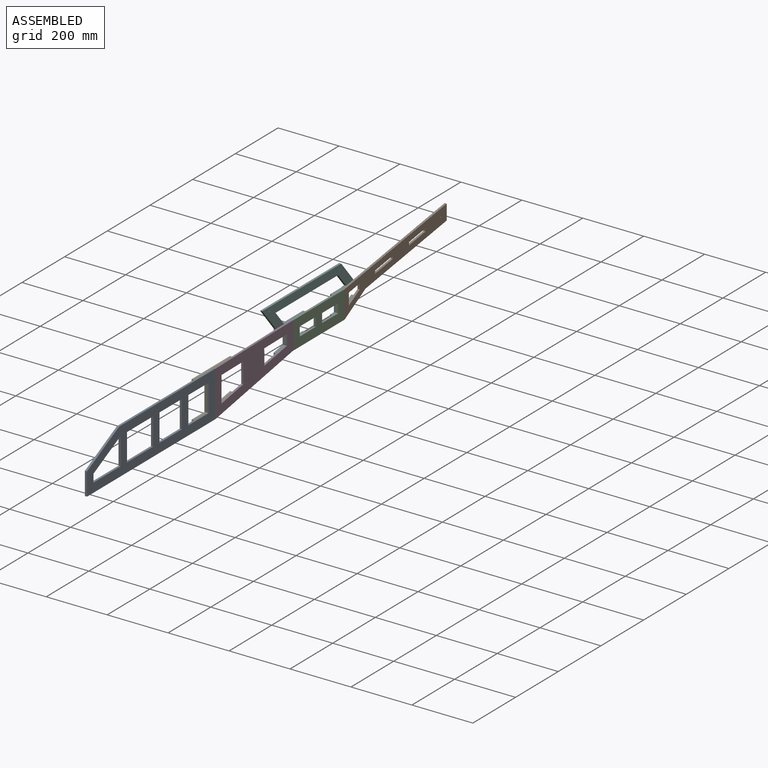
[diagram: assembled view]
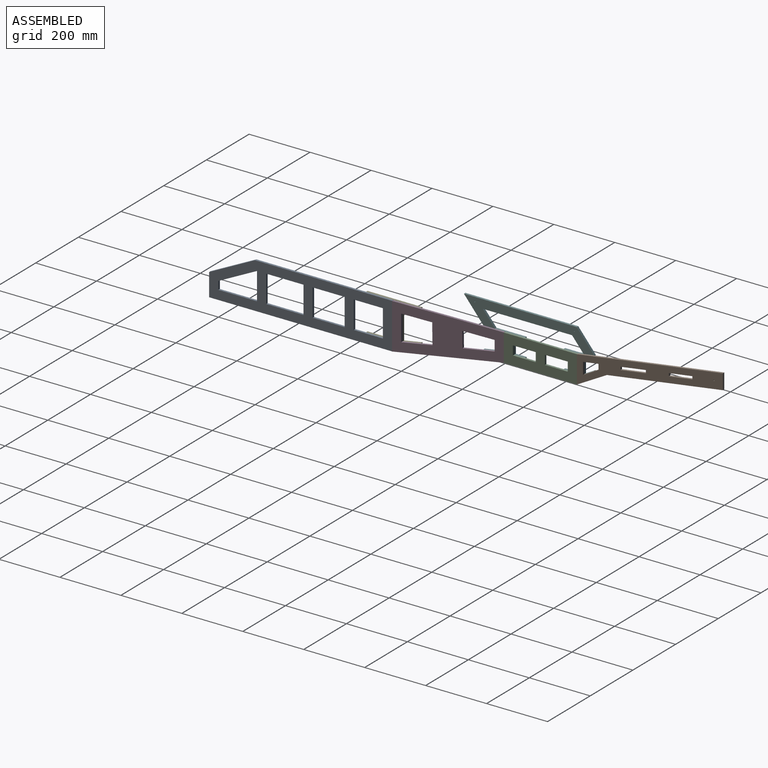
[diagram: assembled view, second angle]
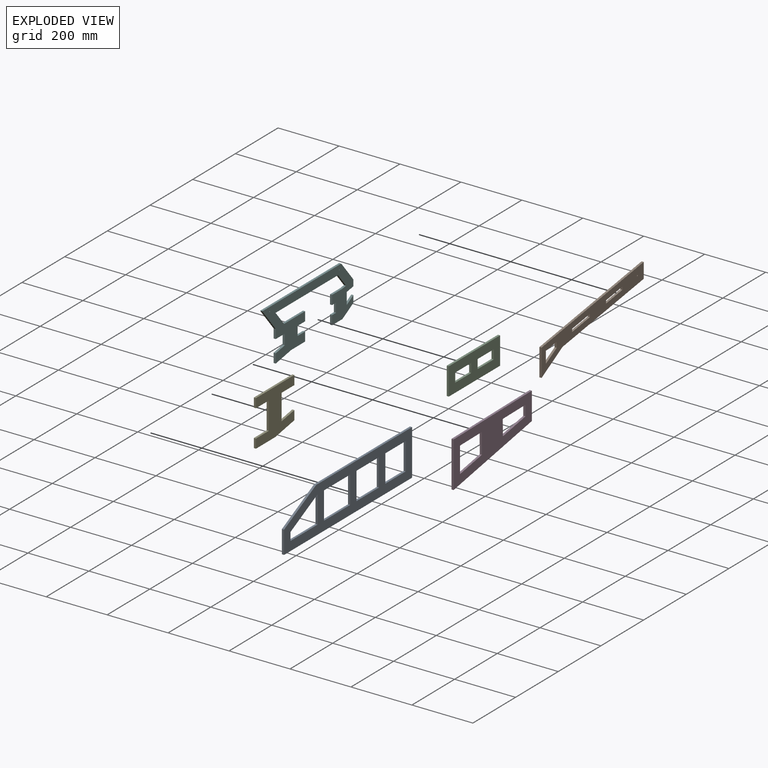
[diagram: exploded view]
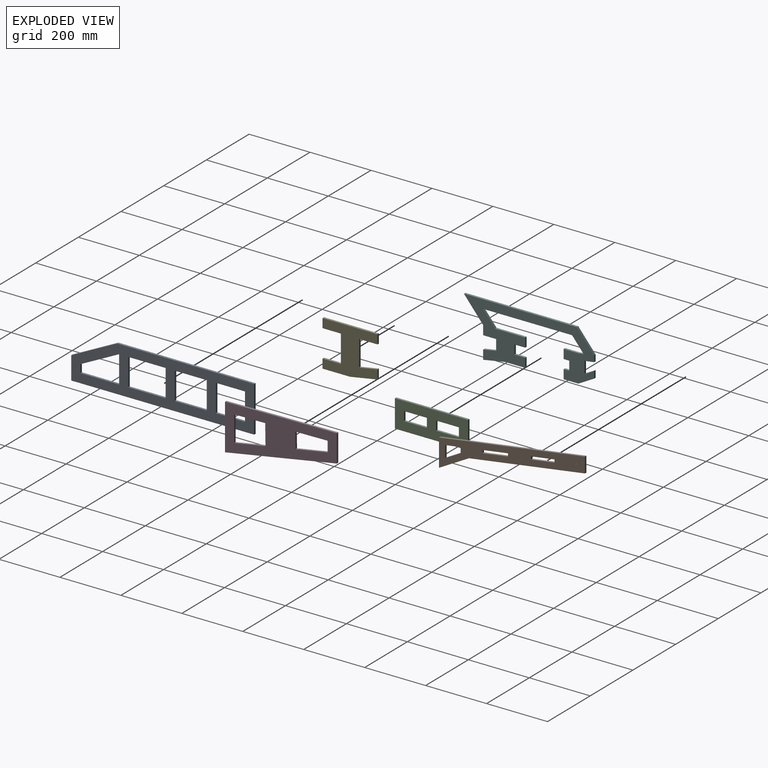
[diagram: exploded view, second angle]
ASSEMBLY  parts=6 mates=5
PART A: 23 faces, bbox 7x600x150 mm
  f0: plane 105.01x7mm, normal (0,0,-1), area 735mm2, adj f1,f20,f21,f22
  f1: plane 90x7mm, normal (0,-1,0), area 630mm2, adj f0,f2,f21,f22
  f2: plane 105.01x7mm, normal (0,0,1), area 735mm2, adj f1,f20,f21,f22
  f3: plane 90x7mm, normal (0,-1,0), area 630mm2, adj f4,f16,f21,f22
  f4: plane 95.48x7mm, normal (0,0,1), area 668.4mm2, adj f3,f5,f21,f22
  f5: plane 90x7mm, normal (0,1,0), area 630mm2, adj f4,f16,f21,f22
  f6: plane 90x7mm, normal (0,-1,0), area 630mm2, adj f7,f17,f21,f22
  f7: plane 127.08x7mm, normal (0,0,1), area 889.6mm2, adj f6,f8,f21,f22
  f8: plane 26.46x7mm, normal (0,1,0), area 185.2mm2, adj f7,f17,f21,f22
  f9: plane 150x75mm, normal (0,-0.45,0.89), area 1173.9mm2, adj f10,f18,f21,f22
  f10: plane 75x7mm, normal (0,-1,0), area 525mm2, adj f9,f11,f21,f22
  f11: plane 600x7mm, normal (0,0,-1), area 4200mm2, adj f10,f12,f21,f22
  f12: plane 150x7mm, normal (0,1,0), area 1050mm2, adj f11,f18,f21,f22
  f13: plane 90x7mm, normal (0,-1,0), area 630mm2, adj f14,f19,f21,f22
  f14: plane 122.43x7mm, normal (0,0,1), area 857mm2, adj f13,f15,f21,f22
  f15: plane 90x7mm, normal (0,1,0), area 630mm2, adj f14,f19,f21,f22
  f16: plane 95.48x7mm, normal (0,0,-1), area 668.4mm2, adj f3,f5,f21,f22
  f17: plane 127.08x63.54mm, normal (0,0.45,-0.89), area 994.6mm2, adj f6,f8,f21,f22
  f18: plane 450x7mm, normal (0,0,1), area 3150mm2, adj f9,f12,f21,f22
  f19: plane 122.43x7mm, normal (0,0,-1), area 857mm2, adj f13,f15,f21,f22
  f20: plane 90x7mm, normal (0,1,0), area 630mm2, adj f0,f2,f21,f22
  f21: plane 600x150mm, normal (1,0,0), area 47912.5mm2, adj f0,f1,f2,f3,f4,f5,f6,f7
  f22: plane 600x150mm, normal (-1,0,0), area 47912.5mm2, adj f0,f1,f2,f3,f4,f5,f6,f7
PART B: 20 faces, bbox 7x478.7x161.3 mm
  f0: plane 77.01x11.46mm, normal (0,0.15,-0.99), area 545mm2, adj f1,f17,f18,f19
  f1: plane 9.56x7mm, normal (0,-1,0), area 66.9mm2, adj f0,f2,f18,f19
  f2: plane 77.01x11.46mm, normal (0,-0.15,0.99), area 545mm2, adj f1,f17,f18,f19
  f3: plane 9.56x7mm, normal (0,1,0), area 66.9mm2, adj f4,f13,f18,f19
  f4: plane 83.42x12.42mm, normal (0,0.15,-0.99), area 590.4mm2, adj f3,f5,f18,f19
  f5: plane 9.56x7mm, normal (0,-1,0), area 66.9mm2, adj f4,f13,f18,f19
  f6: plane 98.46x54.66mm, normal (0,0.49,-0.87), area 788.3mm2, adj f7,f14,f18,f19
  f7: plane 380.23x56.6mm, normal (0,0.15,-0.99), area 2691mm2, adj f6,f8,f18,f19
  f8: plane 50x7mm, normal (0,1,0), area 350mm2, adj f7,f9,f18,f19
  f9: plane 478.69x71.26mm, normal (0,-0.15,0.99), area 3387.8mm2, adj f8,f14,f18,f19
  f10: plane 50.84x28.22mm, normal (0,-0.49,0.87), area 407.1mm2, adj f11,f15,f18,f19
  f11: plane 38.78x7mm, normal (0,1,0), area 271.5mm2, adj f10,f12,f18,f19
  f12: plane 50.84x7.57mm, normal (0,0.15,-0.99), area 359.8mm2, adj f11,f15,f18,f19
  f13: plane 83.42x12.42mm, normal (0,-0.15,0.99), area 590.4mm2, adj f3,f5,f18,f19
  f14: plane 90x7mm, normal (0,-1,0), area 630mm2, adj f6,f9,f18,f19
  f15: plane 18.12x7mm, normal (0,-1,0), area 126.9mm2, adj f10,f12,f18,f19
  f16: cylinder r=1.94mm len=7mm, axis (-1,0,0), area 85.2mm2, adj f18,f19
  f17: plane 9.56x7mm, normal (0,1,0), area 66.9mm2, adj f0,f2,f18,f19
  f18: plane 478.69x161.26mm, normal (1,0,0), area 22912mm2, adj f0,f1,f2,f3,f4,f5,f6,f7
  f19: plane 478.69x161.26mm, normal (-1,0,0), area 22912mm2, adj f0,f1,f2,f3,f4,f5,f6,f7
PART C: 14 faces, bbox 7x240x90 mm
  f0: plane 75x7mm, normal (0,0,-1), area 525mm2, adj f1,f11,f12,f13
  f1: plane 30x7mm, normal (0,-1,0), area 210mm2, adj f0,f2,f12,f13
  f2: plane 75x7mm, normal (0,0,1), area 525mm2, adj f1,f11,f12,f13
  f3: plane 240x7mm, normal (0,0,1), area 1680mm2, adj f4,f9,f12,f13
  f4: plane 90x7mm, normal (0,-1,0), area 630mm2, adj f3,f5,f12,f13
  f5: plane 240x7mm, normal (0,0,-1), area 1680mm2, adj f4,f9,f12,f13
  f6: plane 30x7mm, normal (0,1,0), area 210mm2, adj f7,f10,f12,f13
  f7: plane 75x7mm, normal (0,0,-1), area 525mm2, adj f6,f8,f12,f13
  f8: plane 30x7mm, normal (0,-1,0), area 210mm2, adj f7,f10,f12,f13
  f9: plane 90x7mm, normal (0,1,0), area 630mm2, adj f3,f5,f12,f13
  f10: plane 75x7mm, normal (0,0,1), area 525mm2, adj f6,f8,f12,f13
  f11: plane 30x7mm, normal (0,1,0), area 210mm2, adj f0,f2,f12,f13
  f12: plane 240x90mm, normal (1,0,0), area 17100mm2, adj f0,f1,f2,f3,f4,f5,f6,f7
  f13: plane 240x90mm, normal (-1,0,0), area 17100mm2, adj f0,f1,f2,f3,f4,f5,f6,f7
PART D: 14 faces, bbox 7x366.7x154.7 mm
  f0: plane 101.81x7mm, normal (0,0.01,-1), area 712.7mm2, adj f1,f11,f12,f13
  f1: plane 67.82x7mm, normal (0,-1,-0.01), area 474.7mm2, adj f0,f2,f12,f13
  f2: plane 102.67x18.1mm, normal (0,-0.17,0.98), area 729.8mm2, adj f1,f11,f12,f13
  f3: plane 150x7mm, normal (0,-1,0), area 1050mm2, adj f4,f9,f12,f13
  f4: plane 366.69x64.66mm, normal (0,0.17,-0.98), area 2606.4mm2, adj f3,f5,f12,f13
  f5: plane 90x7mm, normal (0,1,0), area 630mm2, adj f4,f9,f12,f13
  f6: plane 51.7x7mm, normal (0,1,0.01), area 362mm2, adj f7,f10,f12,f13
  f7: plane 106.2x7mm, normal (0,0.01,-1), area 743.4mm2, adj f6,f8,f12,f13
  f8: plane 34.44x7mm, normal (0,-1,0), area 241.1mm2, adj f7,f10,f12,f13
  f9: plane 366.69x7mm, normal (0,-0.01,1), area 2567mm2, adj f3,f5,f12,f13
  f10: plane 105.54x18.61mm, normal (0,-0.17,0.98), area 750.2mm2, adj f6,f8,f12,f13
  f11: plane 84.63x7mm, normal (0,1,0), area 592.4mm2, adj f0,f2,f12,f13
  f12: plane 366.69x154.66mm, normal (1,0,0), area 31641.9mm2, adj f0,f1,f2,f3,f4,f5,f6,f7
  f13: plane 366.69x154.66mm, normal (-1,0,0), area 31641.9mm2, adj f0,f1,f2,f3,f4,f5,f6,f7
PART E: 15 faces, bbox 7x180x150 mm
  f0: plane 60x7mm, normal (0,0,-1), area 420mm2, adj f1,f12,f13,f14
  f1: plane 90x7mm, normal (0,-1,0), area 630mm2, adj f0,f2,f13,f14
  f2: plane 60x7mm, normal (0,0,1), area 420mm2, adj f1,f3,f13,f14
  f3: plane 30x7mm, normal (0,-1,0), area 210mm2, adj f2,f4,f13,f14
  f4: plane 90x7mm, normal (0,0,-1), area 630mm2, adj f3,f5,f13,f14
  f5: plane 90x15.87mm, normal (0,0.17,-0.98), area 639.7mm2, adj f4,f6,f13,f14
  f6: plane 30x7mm, normal (0,1,0), area 210mm2, adj f5,f7,f13,f14
  f7: plane 60x10.58mm, normal (0,-0.17,0.98), area 426.5mm2, adj f6,f8,f13,f14
  f8: plane 84.71x7mm, normal (0,1,0), area 593mm2, adj f7,f9,f13,f14
  f9: plane 60x7mm, normal (0,0,-1), area 420mm2, adj f8,f10,f13,f14
  f10: plane 30x7mm, normal (0,1,0), area 210mm2, adj f9,f11,f13,f14
  f11: plane 180x7mm, normal (0,0,1), area 1260mm2, adj f10,f12,f13,f14
  f12: plane 30x7mm, normal (0,-1,0), area 210mm2, adj f0,f11,f13,f14
  f13: plane 180x150mm, normal (1,0,0), area 16120.7mm2, adj f0,f1,f2,f3,f4,f5,f6,f7
  f14: plane 180x150mm, normal (-1,0,0), area 16120.7mm2, adj f0,f1,f2,f3,f4,f5,f6,f7
PART F: 37 faces, bbox 7x427.2x179.1 mm
  f0: plane 45.54x37.7mm, normal (0,-0.77,-0.64), area 413.8mm2, adj f1,f34,f35,f36
  f1: plane 16.85x7mm, normal (0,-0.15,0.99), area 119.3mm2, adj f0,f2,f35,f36
  f2: plane 48.47x7mm, normal (0,0,1), area 339.3mm2, adj f1,f3,f35,f36
  f3: plane 30x7mm, normal (0,-1,0), area 210mm2, adj f2,f4,f35,f36
  f4: plane 18.47x7mm, normal (0,0,-1), area 129.3mm2, adj f3,f5,f35,f36
  f5: plane 30x7mm, normal (0,-1,0), area 210mm2, adj f4,f6,f35,f36
  f6: plane 18.47x7mm, normal (0,0,1), area 129.3mm2, adj f5,f7,f35,f36
  f7: plane 30x7mm, normal (0,-1,0), area 210mm2, adj f6,f8,f35,f36
  f8: plane 48.47x7mm, normal (0,0,-1), area 339.3mm2, adj f7,f9,f35,f36
  f9: plane 51.53x28.6mm, normal (0,0.49,-0.87), area 412.6mm2, adj f8,f10,f35,f36
  f10: plane 22.88x7mm, normal (0,1,0), area 160.1mm2, adj f9,f11,f35,f36
  f11: plane 31.53x17.5mm, normal (0,-0.49,0.87), area 252.4mm2, adj f10,f12,f35,f36
  f12: plane 38.78x7mm, normal (0,1,0), area 271.5mm2, adj f11,f13,f35,f36
  f13: plane 31.53x7mm, normal (0,0.15,-0.99), area 223.1mm2, adj f12,f14,f35,f36
  f14: plane 20.22x7mm, normal (0,1,0), area 141.5mm2, adj f13,f15,f35,f36
  f15: plane 68.67x56.86mm, normal (0,0.77,0.64), area 624.1mm2, adj f14,f16,f35,f36
  f16: plane 370.38x7mm, normal (0,0,1), area 2592.7mm2, adj f15,f17,f35,f36
  f17: plane 76.34x63.21mm, normal (0,-0.77,-0.64), area 693.8mm2, adj f16,f18,f35,f36
  f18: plane 30x7mm, normal (0,-1,0), area 210mm2, adj f17,f19,f35,f36
  f19: plane 42.5x7mm, normal (0,0,-1), area 297.5mm2, adj f18,f20,f35,f36
  f20: plane 34.83x7mm, normal (0,-1,0), area 243.8mm2, adj f19,f21,f35,f36
  f21: plane 42.5x7.49mm, normal (0,-0.17,0.98), area 302.1mm2, adj f20,f22,f35,f36
  f22: plane 30.46x7mm, normal (0,-1,0), area 213.2mm2, adj f21,f23,f35,f36
  f23: plane 72.5x12.78mm, normal (0,0.17,-0.98), area 515.3mm2, adj f22,f24,f35,f36
  f24: plane 65.34x7mm, normal (0,0,-1), area 457.3mm2, adj f23,f25,f35,f36
  f25: plane 30x7mm, normal (0,1,0), area 210mm2, adj f24,f26,f35,f36
  f26: plane 35.34x7mm, normal (0,0,1), area 247.3mm2, adj f25,f27,f35,f36
  f27: plane 30x7mm, normal (0,1,0), area 210mm2, adj f26,f28,f35,f36
  f28: plane 35.34x7mm, normal (0,0,-1), area 247.3mm2, adj f27,f29,f35,f36
  f29: plane 30x7mm, normal (0,1,0), area 210mm2, adj f28,f30,f35,f36
  f30: plane 98.89x7mm, normal (0,0,1), area 692.2mm2, adj f29,f31,f35,f36
  f31: plane 48.05x39.78mm, normal (0,0.77,0.64), area 436.6mm2, adj f30,f34,f35,f36
  f32: cylinder r=1.65mm len=7mm, axis (-1,0,0), area 72.6mm2, adj f35,f36
  f33: cylinder r=1.45mm len=7mm, axis (-1,0,0), area 63.6mm2, adj f35,f36
  f34: plane 292.48x7mm, normal (0,0,-1), area 2047.4mm2, adj f0,f31,f35,f36
  f35: plane 427.24x179.13mm, normal (1,0,0), area 31065.6mm2, adj f0,f1,f2,f3,f4,f5,f6,f7
  f36: plane 427.24x179.13mm, normal (-1,0,0), area 31065.6mm2, adj f0,f1,f2,f3,f4,f5,f6,f7
PLACE A t=(549.62,-632.17,21.52)mm
PLACE B t=(549.62,477.43,-75.61)mm
PLACE C t=(549.62,-263.91,5.89)mm
PLACE D t=(549.62,-693.26,-7.86)mm
PLACE E t=(542.62,-467.85,19.61)mm
PLACE F t=(542.62,190.25,23.86)mm
MATE fastened F.f35 <-> B.f19  axis (1,0,0) through (549.62,165.85,85.07)mm
MATE fastened A.f22 <-> E.f13  axis (-1,0,0) through (549.62,-490.83,68.42)mm
MATE fastened C.f13 <-> F.f35  axis (-1,0,0) through (549.62,-64.15,72.31)mm
MATE fastened F.f35 <-> D.f13  axis (1,0,0) through (549.62,-124.15,72.31)mm
MATE fastened E.f13 <-> D.f13  axis (1,0,0) through (549.62,-430.83,68.42)mm
